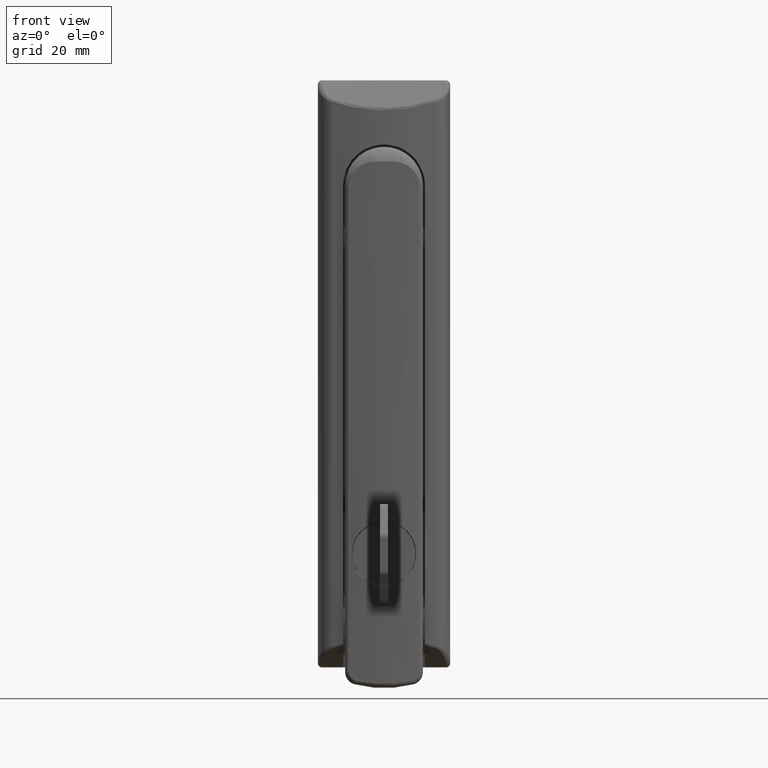
[diagram: clean part render]
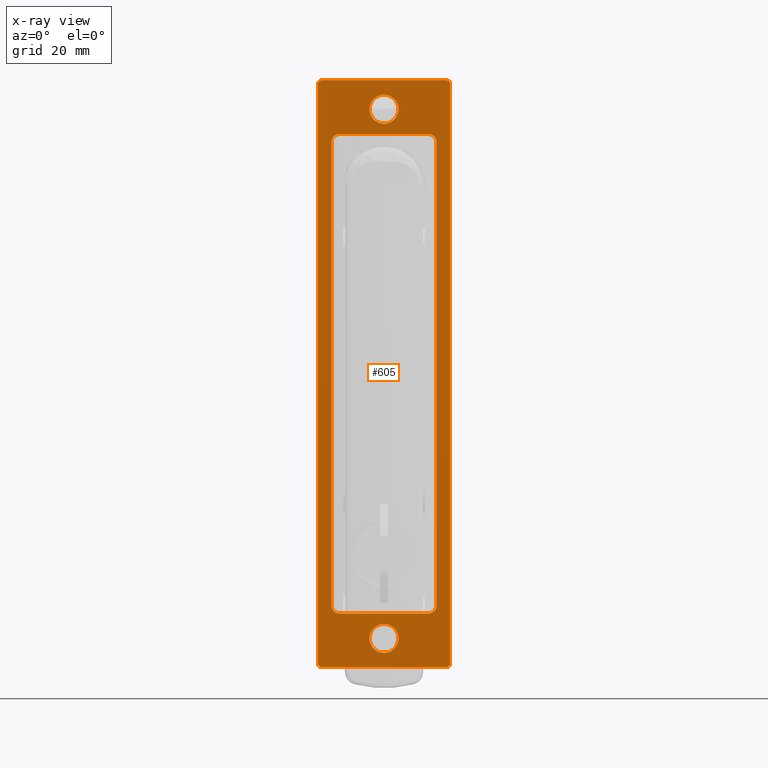
[diagram: x-ray — body ghosted, one internal face saturated and labeled with its STEP entity id]
A machine part, front view, then the same camera in x-ray: the body is ghosted and one INTERNAL B-rep face — a face not visible from any outside direction — is saturated and labeled: STEP entity #605.
In plain terms, the highlighted face is a freeform B-spline surface patch.
Its self-contained STEP definition (entity closure, byte-faithful):
#62=CARTESIAN_POINT('',(-17.500000000000000,0.0,21.999999999997300));
#63=VERTEX_POINT('',#62);
#64=CARTESIAN_POINT('',(-17.500000000000000,-3.489210668045669,18.774606835302428));
#65=VERTEX_POINT('',#64);
#66=CARTESIAN_POINT('',(-17.500000000000000,0.0,21.999999999997300));
#67=CARTESIAN_POINT('',(-17.500000000000000,-3.235366720324405,21.999999999997300));
#68=CARTESIAN_POINT('',(-17.500000000000000,-3.489210668045669,18.774606835302428));
#76=(BOUNDED_CURVE()B_SPLINE_CURVE(2,(#66,#67,#68),.UNSPECIFIED.,.F.,.U.)B_SPLINE_CURVE_WITH_KNOTS((3,3),(0.0,0.236331300607449),.UNSPECIFIED.)CURVE()GEOMETRIC_REPRESENTATION_ITEM()RATIONAL_B_SPLINE_CURVE((1.0,0.723120658634859,0.969723356118978))REPRESENTATION_ITEM(''));
#77=EDGE_CURVE('',#63,#65,#76,.T.);
#79=CARTESIAN_POINT('',(-17.500000000000000,3.489210668045669,18.225393164692179));
#80=VERTEX_POINT('',#79);
#81=CARTESIAN_POINT('',(-17.499999999999996,3.489210668045668,18.225393164692182));
#82=CARTESIAN_POINT('',(-17.500000000000011,3.500000000000000,18.362484625211600));
#83=CARTESIAN_POINT('',(-17.500000000000000,3.500000000000000,18.499999999997300));
#84=CARTESIAN_POINT('',(-17.500000000000000,3.500000000000000,21.999999999997307));
#85=CARTESIAN_POINT('',(-17.500000000000000,0.0,21.999999999997300));
#93=(BOUNDED_CURVE()B_SPLINE_CURVE(2,(#81,#82,#83,#84,#85),.UNSPECIFIED.,.F.,.U.)B_SPLINE_CURVE_WITH_KNOTS((3,2,3),(0.736331300607449,0.750000000000000,1.0),.UNSPECIFIED.)CURVE()GEOMETRIC_REPRESENTATION_ITEM()RATIONAL_B_SPLINE_CURVE((0.969723356118978,0.983986122551689,1.0,0.707106781186547,1.0))REPRESENTATION_ITEM(''));
#94=EDGE_CURVE('',#80,#63,#93,.T.);
#161=CARTESIAN_POINT('',(-17.500000000000000,0.0,14.999999999997300));
#162=VERTEX_POINT('',#161);
#163=CARTESIAN_POINT('',(-17.500000000000004,-3.489210668045668,18.774606835302432));
#164=CARTESIAN_POINT('',(-17.500000000000007,-3.500000000000000,18.637515374783010));
#165=CARTESIAN_POINT('',(-17.500000000000000,-3.500000000000000,18.499999999997300));
#166=CARTESIAN_POINT('',(-17.500000000000000,-3.500000000000000,14.999999999997311));
#167=CARTESIAN_POINT('',(-17.500000000000000,0.0,14.999999999997300));
#175=(BOUNDED_CURVE()B_SPLINE_CURVE(2,(#163,#164,#165,#166,#167),.UNSPECIFIED.,.F.,.U.)B_SPLINE_CURVE_WITH_KNOTS((3,2,3),(0.236331300607449,0.250000000000000,0.500000000000000),.UNSPECIFIED.)CURVE()GEOMETRIC_REPRESENTATION_ITEM()RATIONAL_B_SPLINE_CURVE((0.969723356118979,0.983986122551689,1.0,0.707106781186547,1.0))REPRESENTATION_ITEM(''));
#176=EDGE_CURVE('',#65,#162,#175,.T.);
#210=CARTESIAN_POINT('',(-17.500000000000000,0.0,14.999999999997300));
#211=CARTESIAN_POINT('',(-17.499999999999996,3.235366720324403,14.999999999997311));
#212=CARTESIAN_POINT('',(-17.500000000000004,3.489210668045669,18.225393164692179));
#220=(BOUNDED_CURVE()B_SPLINE_CURVE(2,(#210,#211,#212),.UNSPECIFIED.,.F.,.U.)B_SPLINE_CURVE_WITH_KNOTS((3,3),(0.500000000000000,0.736331300607449),.UNSPECIFIED.)CURVE()GEOMETRIC_REPRESENTATION_ITEM()RATIONAL_B_SPLINE_CURVE((1.0,0.723120658634859,0.969723356118978))REPRESENTATION_ITEM(''));
#221=EDGE_CURVE('',#162,#80,#220,.T.);
#244=CARTESIAN_POINT('',(-17.500000000000000,0.0,-106.000000000002600));
#245=VERTEX_POINT('',#244);
#246=CARTESIAN_POINT('',(-17.500000000000000,-3.489210668045669,-109.225393164697490));
#247=VERTEX_POINT('',#246);
#248=CARTESIAN_POINT('',(-17.500000000000000,0.0,-106.000000000002600));
#249=CARTESIAN_POINT('',(-17.499999999999996,-3.235366720324403,-106.000000000002590));
#250=CARTESIAN_POINT('',(-17.500000000000004,-3.489210668045669,-109.225393164697450));
#258=(BOUNDED_CURVE()B_SPLINE_CURVE(2,(#248,#249,#250),.UNSPECIFIED.,.F.,.U.)B_SPLINE_CURVE_WITH_KNOTS((3,3),(0.0,0.236331300607449),.UNSPECIFIED.)CURVE()GEOMETRIC_REPRESENTATION_ITEM()RATIONAL_B_SPLINE_CURVE((1.0,0.723120658634859,0.969723356118978))REPRESENTATION_ITEM(''));
#259=EDGE_CURVE('',#245,#247,#258,.T.);
#261=CARTESIAN_POINT('',(-17.500000000000000,3.489210668045669,-109.774606835307690));
#262=VERTEX_POINT('',#261);
#263=CARTESIAN_POINT('',(-17.500000000000004,3.489210668045669,-109.774606835307710));
#264=CARTESIAN_POINT('',(-17.500000000000004,3.500000000000000,-109.637515374788340));
#265=CARTESIAN_POINT('',(-17.500000000000000,3.500000000000000,-109.500000000002600));
#266=CARTESIAN_POINT('',(-17.500000000000000,3.500000000000000,-106.000000000002600));
#267=CARTESIAN_POINT('',(-17.500000000000000,0.0,-106.000000000002600));
#275=(BOUNDED_CURVE()B_SPLINE_CURVE(2,(#263,#264,#265,#266,#267),.UNSPECIFIED.,.F.,.U.)B_SPLINE_CURVE_WITH_KNOTS((3,2,3),(0.736331300607449,0.750000000000000,1.0),.UNSPECIFIED.)CURVE()GEOMETRIC_REPRESENTATION_ITEM()RATIONAL_B_SPLINE_CURVE((0.969723356118978,0.983986122551688,1.0,0.707106781186547,1.0))REPRESENTATION_ITEM(''));
#276=EDGE_CURVE('',#262,#245,#275,.T.);
#343=CARTESIAN_POINT('',(-17.500000000000000,0.0,-113.000000000002600));
#344=VERTEX_POINT('',#343);
#345=CARTESIAN_POINT('',(-17.500000000000000,-3.489210668045669,-109.225393164697440));
#346=CARTESIAN_POINT('',(-17.500000000000000,-3.500000000000000,-109.362484625216870));
#347=CARTESIAN_POINT('',(-17.500000000000000,-3.500000000000000,-109.500000000002600));
#348=CARTESIAN_POINT('',(-17.500000000000000,-3.500000000000000,-113.000000000002590));
#349=CARTESIAN_POINT('',(-17.500000000000000,0.0,-113.000000000002600));
#357=(BOUNDED_CURVE()B_SPLINE_CURVE(2,(#345,#346,#347,#348,#349),.UNSPECIFIED.,.F.,.U.)B_SPLINE_CURVE_WITH_KNOTS((3,2,3),(0.236331300607449,0.250000000000000,0.500000000000000),.UNSPECIFIED.)CURVE()GEOMETRIC_REPRESENTATION_ITEM()RATIONAL_B_SPLINE_CURVE((0.969723356118978,0.983986122551689,1.0,0.707106781186547,1.0))REPRESENTATION_ITEM(''));
#358=EDGE_CURVE('',#247,#344,#357,.T.);
#392=CARTESIAN_POINT('',(-17.500000000000000,0.0,-113.000000000002600));
#393=CARTESIAN_POINT('',(-17.499999999999996,3.235366720324403,-113.000000000002590));
#394=CARTESIAN_POINT('',(-17.500000000000004,3.489210668045669,-109.774606835307710));
#402=(BOUNDED_CURVE()B_SPLINE_CURVE(2,(#392,#393,#394),.UNSPECIFIED.,.F.,.U.)B_SPLINE_CURVE_WITH_KNOTS((3,3),(0.500000000000000,0.736331300607449),.UNSPECIFIED.)CURVE()GEOMETRIC_REPRESENTATION_ITEM()RATIONAL_B_SPLINE_CURVE((1.0,0.723120658634859,0.969723356118978))REPRESENTATION_ITEM(''));
#403=EDGE_CURVE('',#344,#262,#402,.T.);
#408=CARTESIAN_POINT('',(-17.500000000000000,-17.598399938014101,32.592899724760237));
#409=CARTESIAN_POINT('',(-17.500000000000000,17.598400796248480,32.592899724760237));
#410=CARTESIAN_POINT('',(-17.500000000000000,-17.598399938014101,-123.592903533547100));
#411=CARTESIAN_POINT('',(-17.500000000000000,17.598400796248480,-123.592903533547100));
#412=B_SPLINE_SURFACE_WITH_KNOTS('',1,1,((#408,#410),(#409,#411)),.UNSPECIFIED.,.F.,.F.,.U.,(2,2),(2,2),(0.0,35.196800734262581),(0.0,156.185803258307290),.UNSPECIFIED.);
#413=CARTESIAN_POINT('',(-17.500000000000000,14.999999999963681,25.499999999983000));
#414=VERTEX_POINT('',#413);
#415=CARTESIAN_POINT('',(-17.500000000000000,-15.000000000036300,25.499999999966800));
#416=VERTEX_POINT('',#415);
#417=CARTESIAN_POINT('',(-17.500000000000000,14.999999999963681,25.499999999983000));
#418=CARTESIAN_POINT('',(-17.500000000000000,-15.000000000036300,25.499999999966800));
#419=QUASI_UNIFORM_CURVE('',1,(#417,#418),.UNSPECIFIED.,.F.,.U.);
#420=EDGE_CURVE('',#414,#416,#419,.T.);
#421=ORIENTED_EDGE('',*,*,#420,.F.);
#422=CARTESIAN_POINT('',(-17.500000000000000,15.999999999963700,24.499999999983000));
#423=VERTEX_POINT('',#422);
#424=CARTESIAN_POINT('',(-17.500000000000000,15.999999999963681,24.499999999983000));
#425=CARTESIAN_POINT('',(-17.499999999999996,15.999999999963682,25.499999999982997));
#426=CARTESIAN_POINT('',(-17.500000000000000,14.999999999963681,25.499999999983000));
#434=(BOUNDED_CURVE()B_SPLINE_CURVE(2,(#424,#425,#426),.UNSPECIFIED.,.F.,.U.)CURVE()GEOMETRIC_REPRESENTATION_ITEM()QUASI_UNIFORM_CURVE()RATIONAL_B_SPLINE_CURVE((1.0,0.707106781186548,1.0))REPRESENTATION_ITEM(''));
#435=EDGE_CURVE('',#423,#414,#434,.T.);
#436=ORIENTED_EDGE('',*,*,#435,.F.);
#437=CARTESIAN_POINT('',(-17.500000000000000,15.999999999963800,-115.500000000017000));
#438=VERTEX_POINT('',#437);
#439=CARTESIAN_POINT('',(-17.500000000000000,15.999999999963800,-115.500000000017000));
#440=CARTESIAN_POINT('',(-17.500000000000000,15.999999999963700,24.499999999983000));
#441=QUASI_UNIFORM_CURVE('',1,(#439,#440),.UNSPECIFIED.,.F.,.U.);
#442=EDGE_CURVE('',#438,#423,#441,.T.);
#443=ORIENTED_EDGE('',*,*,#442,.F.);
#444=CARTESIAN_POINT('',(-17.500000000000000,14.999999999964199,-116.500000000017000));
#445=VERTEX_POINT('',#444);
#446=CARTESIAN_POINT('',(-17.500000000000000,14.999999999964199,-116.500000000017000));
#447=CARTESIAN_POINT('',(-17.500000000000000,15.999999999963800,-116.500000000016580));
#448=CARTESIAN_POINT('',(-17.500000000000000,15.999999999963800,-115.500000000017000));
#456=(BOUNDED_CURVE()B_SPLINE_CURVE(2,(#446,#447,#448),.UNSPECIFIED.,.F.,.U.)CURVE()GEOMETRIC_REPRESENTATION_ITEM()QUASI_UNIFORM_CURVE()RATIONAL_B_SPLINE_CURVE((1.0,0.707106781186689,1.0))REPRESENTATION_ITEM(''));
#457=EDGE_CURVE('',#445,#438,#456,.T.);
#458=ORIENTED_EDGE('',*,*,#457,.F.);
#459=CARTESIAN_POINT('',(-17.500000000000000,-15.000000000036300,-116.500000000033000));
#460=VERTEX_POINT('',#459);
#461=CARTESIAN_POINT('',(-17.500000000000000,-15.000000000036300,-116.500000000033000));
#462=CARTESIAN_POINT('',(-17.500000000000000,14.999999999964199,-116.500000000017000));
#463=QUASI_UNIFORM_CURVE('',1,(#461,#462),.UNSPECIFIED.,.F.,.U.);
#464=EDGE_CURVE('',#460,#445,#463,.T.);
#465=ORIENTED_EDGE('',*,*,#464,.F.);
#466=CARTESIAN_POINT('',(-17.500000000000000,-16.000000000036302,-115.500000000033000));
#467=VERTEX_POINT('',#466);
#468=CARTESIAN_POINT('',(-17.500000000000000,-16.000000000036302,-115.500000000033000));
#469=CARTESIAN_POINT('',(-17.499999999999996,-16.000000000036302,-116.500000000033010));
#470=CARTESIAN_POINT('',(-17.500000000000000,-15.000000000036300,-116.500000000033000));
#478=(BOUNDED_CURVE()B_SPLINE_CURVE(2,(#468,#469,#470),.UNSPECIFIED.,.F.,.U.)CURVE()GEOMETRIC_REPRESENTATION_ITEM()QUASI_UNIFORM_CURVE()RATIONAL_B_SPLINE_CURVE((1.0,0.707106781186548,1.0))REPRESENTATION_ITEM(''));
#479=EDGE_CURVE('',#467,#460,#478,.T.);
#480=ORIENTED_EDGE('',*,*,#479,.F.);
#481=CARTESIAN_POINT('',(-17.500000000000000,-16.000000000036302,24.499999999966800));
#482=VERTEX_POINT('',#481);
#483=CARTESIAN_POINT('',(-17.500000000000000,-16.000000000036302,24.499999999966800));
#484=CARTESIAN_POINT('',(-17.500000000000000,-16.000000000036302,-115.500000000033000));
#485=QUASI_UNIFORM_CURVE('',1,(#483,#484),.UNSPECIFIED.,.F.,.U.);
#486=EDGE_CURVE('',#482,#467,#485,.T.);
#487=ORIENTED_EDGE('',*,*,#486,.F.);
#488=CARTESIAN_POINT('',(-17.500000000000000,-15.000000000036300,25.499999999966800));
#489=CARTESIAN_POINT('',(-17.499999999999996,-16.000000000036302,25.499999999966803));
#490=CARTESIAN_POINT('',(-17.500000000000000,-16.000000000036302,24.499999999966800));
#498=(BOUNDED_CURVE()B_SPLINE_CURVE(2,(#488,#489,#490),.UNSPECIFIED.,.F.,.U.)CURVE()GEOMETRIC_REPRESENTATION_ITEM()QUASI_UNIFORM_CURVE()RATIONAL_B_SPLINE_CURVE((1.0,0.707106781186548,1.0))REPRESENTATION_ITEM(''));
#499=EDGE_CURVE('',#416,#482,#498,.T.);
#500=ORIENTED_EDGE('',*,*,#499,.F.);
#501=EDGE_LOOP('',(#421,#436,#443,#458,#465,#480,#487,#500));
#502=FACE_OUTER_BOUND('',#501,.T.);
#503=CARTESIAN_POINT('',(-17.500000000000000,12.699999999999880,10.499999999997200));
#504=VERTEX_POINT('',#503);
#505=CARTESIAN_POINT('',(-17.500000000000000,10.699999999999200,12.500000000008500));
#506=VERTEX_POINT('',#505);
#507=CARTESIAN_POINT('',(-17.500000000000000,12.699999999999880,10.499999999997200));
#508=CARTESIAN_POINT('',(-17.499999999999996,12.699999999999880,12.499999999997199));
#509=CARTESIAN_POINT('',(-17.500000000000000,10.699999999999200,12.500000000008500));
#517=(BOUNDED_CURVE()B_SPLINE_CURVE(2,(#507,#508,#509),.UNSPECIFIED.,.F.,.U.)CURVE()GEOMETRIC_REPRESENTATION_ITEM()QUASI_UNIFORM_CURVE()RATIONAL_B_SPLINE_CURVE((1.0,0.707106781186548,1.0))REPRESENTATION_ITEM(''));
#518=EDGE_CURVE('',#504,#506,#517,.T.);
#519=ORIENTED_EDGE('',*,*,#518,.T.);
#520=CARTESIAN_POINT('',(-17.500000000000000,-10.700000000000900,12.500000000000480));
#521=VERTEX_POINT('',#520);
#522=CARTESIAN_POINT('',(-17.500000000000000,10.699999999999200,12.500000000008500));
#523=CARTESIAN_POINT('',(-17.500000000000000,-10.700000000000900,12.500000000000480));
#524=QUASI_UNIFORM_CURVE('',1,(#522,#523),.UNSPECIFIED.,.F.,.U.);
#525=EDGE_CURVE('',#506,#521,#524,.T.);
#526=ORIENTED_EDGE('',*,*,#525,.T.);
#527=CARTESIAN_POINT('',(-17.500000000000000,-12.699999999999999,10.499999999997200));
#528=VERTEX_POINT('',#527);
#529=CARTESIAN_POINT('',(-17.500000000000000,-10.700000000000900,12.500000000000480));
#530=CARTESIAN_POINT('',(-17.499999999999996,-12.699999999999999,12.499999999997199));
#531=CARTESIAN_POINT('',(-17.500000000000000,-12.699999999999999,10.499999999997200));
#539=(BOUNDED_CURVE()B_SPLINE_CURVE(2,(#529,#530,#531),.UNSPECIFIED.,.F.,.U.)CURVE()GEOMETRIC_REPRESENTATION_ITEM()QUASI_UNIFORM_CURVE()RATIONAL_B_SPLINE_CURVE((1.0,0.707106781186548,1.0))REPRESENTATION_ITEM(''));
#540=EDGE_CURVE('',#521,#528,#539,.T.);
#541=ORIENTED_EDGE('',*,*,#540,.T.);
#542=CARTESIAN_POINT('',(-17.500000000000000,-12.700000000000220,-101.500000000002600));
#543=VERTEX_POINT('',#542);
#544=CARTESIAN_POINT('',(-17.500000000000000,-12.699999999999999,10.499999999997200));
#545=CARTESIAN_POINT('',(-17.500000000000000,-12.700000000000220,-101.500000000002600));
#546=QUASI_UNIFORM_CURVE('',1,(#544,#545),.UNSPECIFIED.,.F.,.U.);
#547=EDGE_CURVE('',#528,#543,#546,.T.);
#548=ORIENTED_EDGE('',*,*,#547,.T.);
#549=CARTESIAN_POINT('',(-17.500000000000000,-10.700000000000220,-103.500000000002600));
#550=VERTEX_POINT('',#549);
#551=CARTESIAN_POINT('',(-17.500000000000000,-12.700000000000220,-101.500000000002600));
#552=CARTESIAN_POINT('',(-17.499999999999996,-12.700000000000220,-103.500000000002600));
#553=CARTESIAN_POINT('',(-17.500000000000000,-10.700000000000220,-103.500000000002600));
#561=(BOUNDED_CURVE()B_SPLINE_CURVE(2,(#551,#552,#553),.UNSPECIFIED.,.F.,.U.)CURVE()GEOMETRIC_REPRESENTATION_ITEM()QUASI_UNIFORM_CURVE()RATIONAL_B_SPLINE_CURVE((1.0,0.707106781186548,1.0))REPRESENTATION_ITEM(''));
#562=EDGE_CURVE('',#543,#550,#561,.T.);
#563=ORIENTED_EDGE('',*,*,#562,.T.);
#564=CARTESIAN_POINT('',(-17.500000000000000,10.699999999999880,-103.500000000002800));
#565=VERTEX_POINT('',#564);
#566=CARTESIAN_POINT('',(-17.500000000000000,-10.700000000000220,-103.500000000002600));
#567=CARTESIAN_POINT('',(-17.500000000000000,10.699999999999880,-103.500000000002800));
#568=QUASI_UNIFORM_CURVE('',1,(#566,#567),.UNSPECIFIED.,.F.,.U.);
#569=EDGE_CURVE('',#550,#565,#568,.T.);
#570=ORIENTED_EDGE('',*,*,#569,.T.);
#571=CARTESIAN_POINT('',(-17.500000000000000,12.699999999999880,-101.500000000002800));
#572=VERTEX_POINT('',#571);
#573=CARTESIAN_POINT('',(-17.500000000000000,10.699999999999880,-103.500000000002800));
#574=CARTESIAN_POINT('',(-17.499999999999996,12.699999999999880,-103.500000000002810));
#575=CARTESIAN_POINT('',(-17.500000000000000,12.699999999999880,-101.500000000002800));
#583=(BOUNDED_CURVE()B_SPLINE_CURVE(2,(#573,#574,#575),.UNSPECIFIED.,.F.,.U.)CURVE()GEOMETRIC_REPRESENTATION_ITEM()QUASI_UNIFORM_CURVE()RATIONAL_B_SPLINE_CURVE((1.0,0.707106781186548,1.0))REPRESENTATION_ITEM(''));
#584=EDGE_CURVE('',#565,#572,#583,.T.);
#585=ORIENTED_EDGE('',*,*,#584,.T.);
#586=CARTESIAN_POINT('',(-17.500000000000000,12.699999999999880,-101.500000000002800));
#587=CARTESIAN_POINT('',(-17.500000000000000,12.699999999999880,10.499999999997200));
#588=QUASI_UNIFORM_CURVE('',1,(#586,#587),.UNSPECIFIED.,.F.,.U.);
#589=EDGE_CURVE('',#572,#504,#588,.T.);
#590=ORIENTED_EDGE('',*,*,#589,.T.);
#591=EDGE_LOOP('',(#519,#526,#541,#548,#563,#570,#585,#590));
#592=FACE_BOUND('',#591,.T.);
#593=ORIENTED_EDGE('',*,*,#403,.T.);
#594=ORIENTED_EDGE('',*,*,#276,.T.);
#595=ORIENTED_EDGE('',*,*,#259,.T.);
#596=ORIENTED_EDGE('',*,*,#358,.T.);
#597=EDGE_LOOP('',(#593,#594,#595,#596));
#598=FACE_BOUND('',#597,.T.);
#599=ORIENTED_EDGE('',*,*,#221,.T.);
#600=ORIENTED_EDGE('',*,*,#94,.T.);
#601=ORIENTED_EDGE('',*,*,#77,.T.);
#602=ORIENTED_EDGE('',*,*,#176,.T.);
#603=EDGE_LOOP('',(#599,#600,#601,#602));
#604=FACE_BOUND('',#603,.T.);
#605=ADVANCED_FACE('',(#502,#592,#598,#604),#412,.T.);